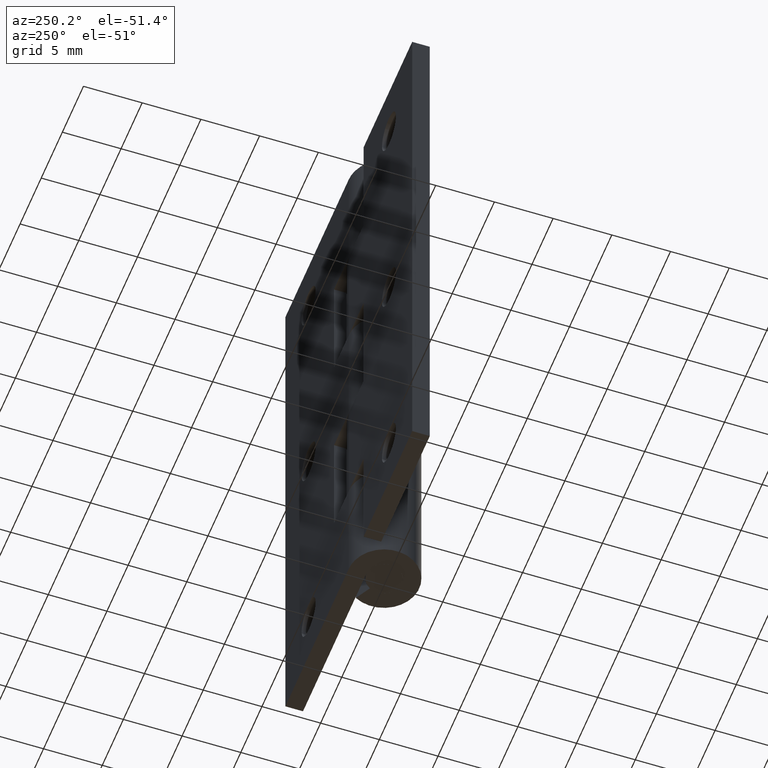
[diagram: clean part render]
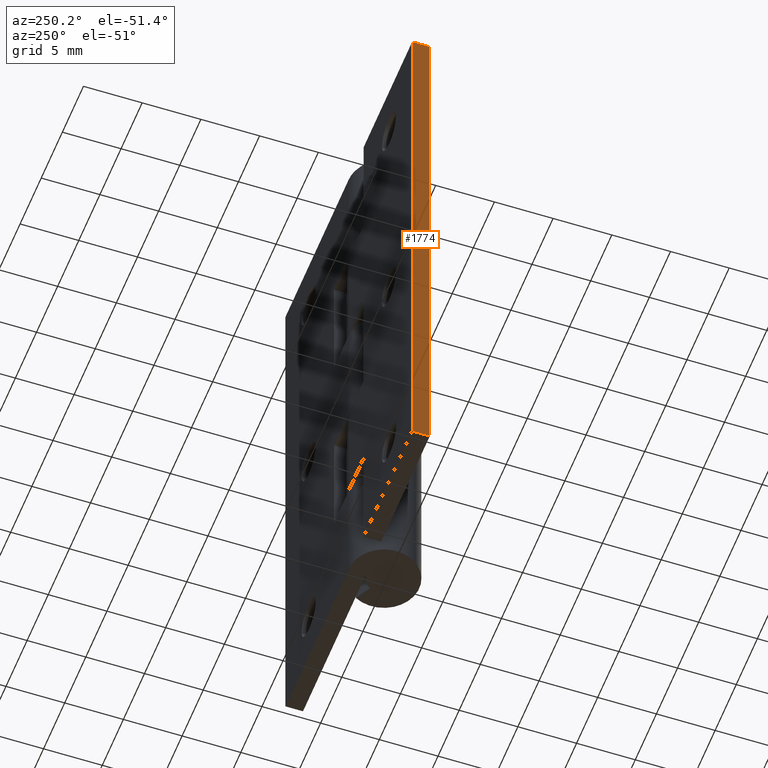
[diagram: same view with one face highlighted and labeled with its STEP entity id]
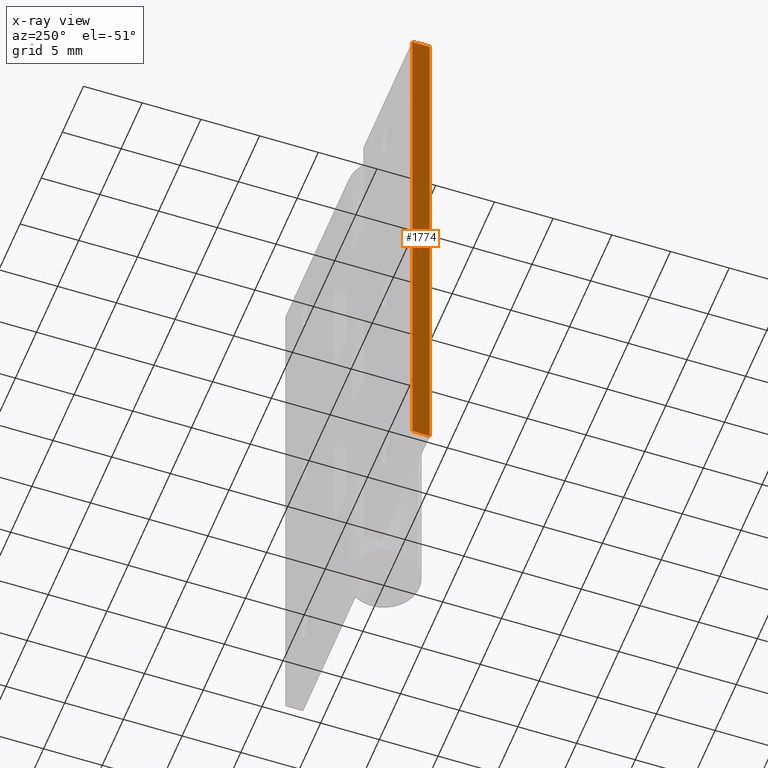
[diagram: x-ray of the same camera — body ghosted, the highlighted face saturated]
A machine part, auxiliary view. The second image highlights one B-rep face of the part: STEP entity #1774.
The next image is the same camera in x-ray: the body ghosted, the highlighted face saturated — about 0% of this face is hidden behind the body in this view.
In plain terms, the highlighted face is a freeform B-spline surface patch.
Its self-contained STEP definition (entity closure, byte-faithful):
#1704=CARTESIAN_POINT('',(-15.0,1.500000000000000,50.0));
#1705=VERTEX_POINT('',#1704);
#1712=CARTESIAN_POINT('',(-15.0,3.0,50.0));
#1713=VERTEX_POINT('',#1712);
#1719=CARTESIAN_POINT('',(-15.0,3.0,50.0));
#1720=CARTESIAN_POINT('',(-15.0,1.500000000000000,50.0));
#1721=QUASI_UNIFORM_CURVE('',1,(#1719,#1720),.UNSPECIFIED.,.F.,.U.);
#1722=EDGE_CURVE('',#1713,#1705,#1721,.T.);
#1733=CARTESIAN_POINT('',(-15.0,1.500000000000000,0.0));
#1734=VERTEX_POINT('',#1733);
#1740=CARTESIAN_POINT('',(-15.0,3.0,0.0));
#1741=VERTEX_POINT('',#1740);
#1742=CARTESIAN_POINT('',(-15.0,3.0,0.0));
#1743=CARTESIAN_POINT('',(-15.0,1.500000000000000,0.0));
#1744=QUASI_UNIFORM_CURVE('',1,(#1742,#1743),.UNSPECIFIED.,.F.,.U.);
#1745=EDGE_CURVE('',#1741,#1734,#1744,.T.);
#1755=CARTESIAN_POINT('',(-15.0,1.425075002907291,-2.497499903090299));
#1756=CARTESIAN_POINT('',(-15.0,1.425075002907291,52.497501244194808));
#1757=CARTESIAN_POINT('',(-15.0,3.074925037325845,-2.497499903090299));
#1758=CARTESIAN_POINT('',(-15.0,3.074925037325845,52.497501244194808));
#1759=B_SPLINE_SURFACE_WITH_KNOTS('',1,1,((#1755,#1757),(#1756,#1758)),.UNSPECIFIED.,.F.,.F.,.U.,(2,2),(2,2),(0.0,54.995001147285109),(0.041708334948495,0.958291687403247),.UNSPECIFIED.);
#1760=ORIENTED_EDGE('',*,*,#1722,.F.);
#1761=CARTESIAN_POINT('',(-15.0,3.0,0.0));
#1762=CARTESIAN_POINT('',(-15.0,3.0,50.0));
#1763=QUASI_UNIFORM_CURVE('',1,(#1761,#1762),.UNSPECIFIED.,.F.,.U.);
#1764=EDGE_CURVE('',#1741,#1713,#1763,.T.);
#1765=ORIENTED_EDGE('',*,*,#1764,.F.);
#1766=ORIENTED_EDGE('',*,*,#1745,.T.);
#1767=CARTESIAN_POINT('',(-15.0,1.500000000000000,0.0));
#1768=CARTESIAN_POINT('',(-15.0,1.500000000000000,50.0));
#1769=QUASI_UNIFORM_CURVE('',1,(#1767,#1768),.UNSPECIFIED.,.F.,.U.);
#1770=EDGE_CURVE('',#1734,#1705,#1769,.T.);
#1771=ORIENTED_EDGE('',*,*,#1770,.T.);
#1772=EDGE_LOOP('',(#1760,#1765,#1766,#1771));
#1773=FACE_OUTER_BOUND('',#1772,.T.);
#1774=ADVANCED_FACE('',(#1773),#1759,.T.);